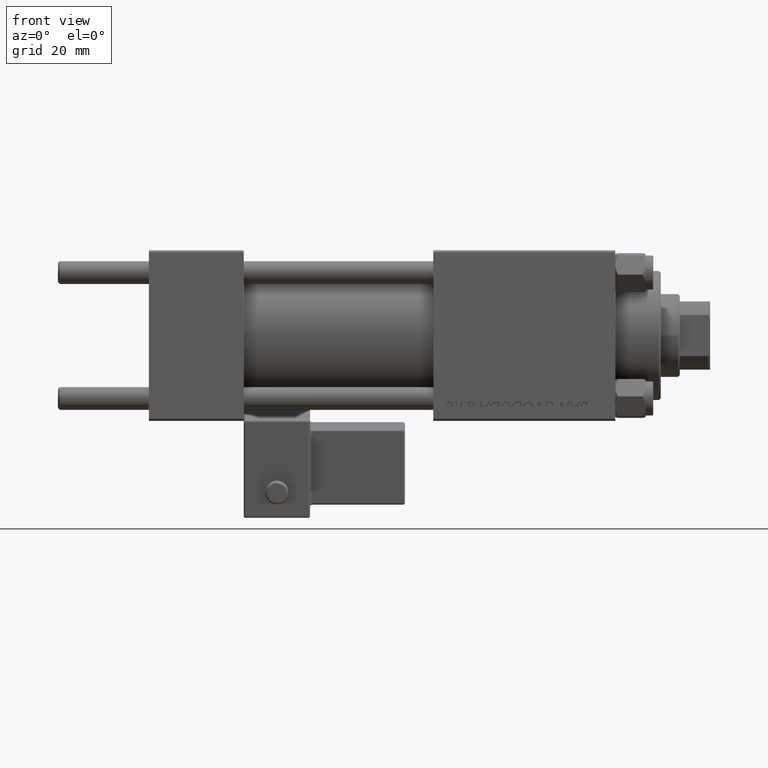
[diagram: clean part render]
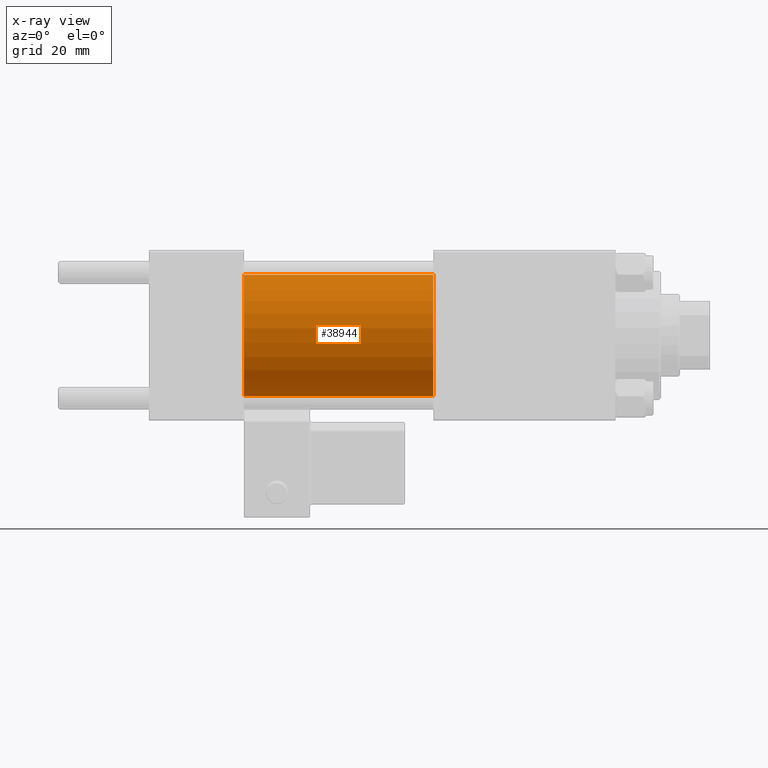
[diagram: x-ray — body ghosted, one internal face saturated and labeled with its STEP entity id]
A machine part, front view, then the same camera in x-ray: the body is ghosted and one INTERNAL B-rep face — a face not visible from any outside direction — is saturated and labeled: STEP entity #38944.
In plain terms, the highlighted cylindrical surface (partial cylindrical patch) has radius 16 mm, axis along (-1, -0, -0).
Its self-contained STEP definition (entity closure, byte-faithful):
#8 = AXIS2_PLACEMENT_3D ( 'NONE', #26882, #43017, #6815 ) ;
#1087 = CARTESIAN_POINT ( 'NONE',  ( 75.00000000000001421, 1.959434878635765131E-15, -16.00000000000000000 ) ) ;
#4723 = CARTESIAN_POINT ( 'NONE',  ( 25.00000000000000000, 0.000000000000000000, 16.00000000000000000 ) ) ;
#5042 = EDGE_CURVE ( 'NONE', #24631, #20753, #37295, .T. ) ;
#5466 = CARTESIAN_POINT ( 'NONE',  ( 75.00000000000001421, 0.000000000000000000, 16.00000000000000000 ) ) ;
#6815 = DIRECTION ( 'NONE',  ( 0.000000000000000000, 0.000000000000000000, -1.000000000000000000 ) ) ;
#6982 = EDGE_CURVE ( 'NONE', #20181, #24631, #12648, .T. ) ;
#7996 = CARTESIAN_POINT ( 'NONE',  ( 75.00000000000001421, 0.000000000000000000, 0.000000000000000000 ) ) ;
#8422 = VECTOR ( 'NONE', #41516, 1000.000000000000000 ) ;
#9239 = CARTESIAN_POINT ( 'NONE',  ( 75.00000000000001421, 0.000000000000000000, 16.00000000000000000 ) ) ;
#12648 = CIRCLE ( 'NONE', #8, 16.00000000000000000 ) ;
#13513 = DIRECTION ( 'NONE',  ( 0.000000000000000000, 0.000000000000000000, -1.000000000000000000 ) ) ;
#14029 = DIRECTION ( 'NONE',  ( 1.000000000000000000, 0.000000000000000000, 0.000000000000000000 ) ) ;
#17588 = CARTESIAN_POINT ( 'NONE',  ( 75.00000000000001421, 1.959434878635765131E-15, -16.00000000000000000 ) ) ;
#18011 = VECTOR ( 'NONE', #30029, 1000.000000000000000 ) ;
#20181 = VERTEX_POINT ( 'NONE', #9239 ) ;
#20753 = VERTEX_POINT ( 'NONE', #28281 ) ;
#21137 = CIRCLE ( 'NONE', #43923, 16.00000000000000000 ) ;
#24631 = VERTEX_POINT ( 'NONE', #17588 ) ;
#24863 = DIRECTION ( 'NONE',  ( -1.000000000000000000, -0.000000000000000000, -0.000000000000000000 ) ) ;
#25170 = ORIENTED_EDGE ( 'NONE', *, *, #44669, .F. ) ;
#26882 = CARTESIAN_POINT ( 'NONE',  ( 75.00000000000001421, 0.000000000000000000, 0.000000000000000000 ) ) ;
#27773 = ORIENTED_EDGE ( 'NONE', *, *, #5042, .T. ) ;
#28071 = AXIS2_PLACEMENT_3D ( 'NONE', #7996, #24863, #32803 ) ;
#28281 = CARTESIAN_POINT ( 'NONE',  ( 25.00000000000000000, 1.959434878635765131E-15, -16.00000000000000000 ) ) ;
#30029 = DIRECTION ( 'NONE',  ( -1.000000000000000000, -0.000000000000000000, -0.000000000000000000 ) ) ;
#32803 = DIRECTION ( 'NONE',  ( 0.000000000000000000, 0.000000000000000000, 1.000000000000000000 ) ) ;
#33521 = EDGE_CURVE ( 'NONE', #48660, #20753, #21137, .T. ) ;
#36313 = ORIENTED_EDGE ( 'NONE', *, *, #6982, .T. ) ;
#37295 = LINE ( 'NONE', #1087, #8422 ) ;
#38944 = ADVANCED_FACE ( 'NONE', ( #48170 ), #44196, .F. ) ;
#41516 = DIRECTION ( 'NONE',  ( -1.000000000000000000, -0.000000000000000000, -0.000000000000000000 ) ) ;
#43017 = DIRECTION ( 'NONE',  ( 1.000000000000000000, 0.000000000000000000, 0.000000000000000000 ) ) ;
#43923 = AXIS2_PLACEMENT_3D ( 'NONE', #49728, #14029, #13513 ) ;
#44196 = CYLINDRICAL_SURFACE ( 'NONE', #28071, 16.00000000000000000 ) ;
#44669 = EDGE_CURVE ( 'NONE', #20181, #48660, #46673, .T. ) ;
#45042 = EDGE_LOOP ( 'NONE', ( #36313, #27773, #49724, #25170 ) ) ;
#46673 = LINE ( 'NONE', #5466, #18011 ) ;
#48170 = FACE_OUTER_BOUND ( 'NONE', #45042, .T. ) ;
#48660 = VERTEX_POINT ( 'NONE', #4723 ) ;
#49724 = ORIENTED_EDGE ( 'NONE', *, *, #33521, .F. ) ;
#49728 = CARTESIAN_POINT ( 'NONE',  ( 25.00000000000000000, 0.000000000000000000, 0.000000000000000000 ) ) ;